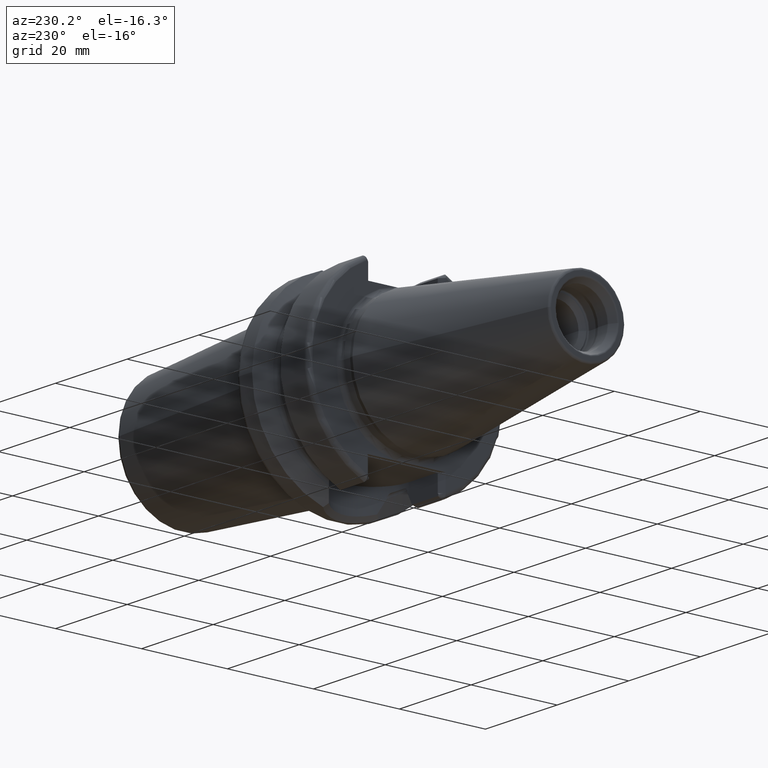
[diagram: clean part render]
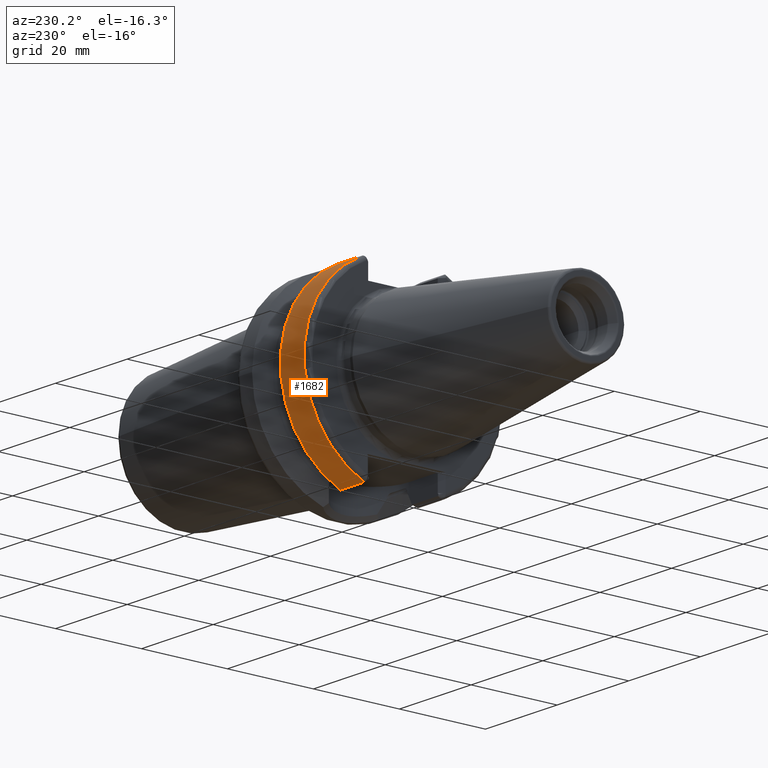
[diagram: same view with one face highlighted and labeled with its STEP entity id]
A machine part, auxiliary view. The second image highlights one B-rep face of the part: STEP entity #1682.
In plain terms, the highlighted cylindrical surface (partial cylindrical patch) has radius 22.99 mm, axis along (1, 0, 0).
Its self-contained STEP definition (entity closure, byte-faithful):
#208=CARTESIAN_POINT('',(3.E0,0.E0,0.E0));
#209=DIRECTION('',(-1.E0,0.E0,0.E0));
#210=DIRECTION('',(0.E0,4.135970895862E-1,9.104600197075E-1));
#211=AXIS2_PLACEMENT_3D('',#208,#209,#210);
#213=DIRECTION('',(-9.999999999953E-1,1.691137855745E-6,2.559578267209E-6));
#214=VECTOR('',#213,6.650924186073E0);
#215=CARTESIAN_POINT('',(9.650924158743E0,9.014912704843E0,-2.114879308434E1));
#216=LINE('',#215,#214);
#217=CARTESIAN_POINT('',(9.650924158743E0,0.E0,0.E0));
#218=DIRECTION('',(1.E0,0.E0,0.E0));
#219=DIRECTION('',(0.E0,3.921232146517E-1,-9.199127048428E-1));
#220=AXIS2_PLACEMENT_3D('',#217,#218,#219);
#222=DIRECTION('',(9.999999999877E-1,2.689360368038E-6,-4.174830095266E-6));
#223=VECTOR('',#222,6.650924175867E0);
#224=CARTESIAN_POINT('',(2.999999982958E0,9.508579202854E0,2.093150361955E1));
#225=LINE('',#224,#223);
#582=CARTESIAN_POINT('',(2.999999972701E0,9.014923952472E0,-2.114877606078E1));
#1308=CARTESIAN_POINT('',(9.650924158743E0,9.014912704843E0,-2.114879308434E1));
#1309=CARTESIAN_POINT('',(9.650924158743E0,9.508597089586E0,2.093147585308E1));
#1310=VERTEX_POINT('',#1308);
#1311=VERTEX_POINT('',#1309);
#1323=CARTESIAN_POINT('',(3.E0,9.508621994147E0,2.093146453960E1));
#1325=VERTEX_POINT('',#1323);
#1340=VERTEX_POINT('',#582);
#1668=CARTESIAN_POINT('',(-5.192E1,0.E0,0.E0));
#1669=DIRECTION('',(1.E0,0.E0,0.E0));
#1670=DIRECTION('',(0.E0,-1.E0,0.E0));
#1671=AXIS2_PLACEMENT_3D('',#1668,#1669,#1670);
#1672=CYLINDRICAL_SURFACE('',#1671,2.299E1);
#1674=ORIENTED_EDGE('',*,*,#1673,.T.);
#1676=ORIENTED_EDGE('',*,*,#1675,.F.);
#1677=ORIENTED_EDGE('',*,*,#1611,.T.);
#1679=ORIENTED_EDGE('',*,*,#1678,.F.);
#1680=EDGE_LOOP('',(#1674,#1676,#1677,#1679));
#1681=FACE_OUTER_BOUND('',#1680,.F.);
#1682=ADVANCED_FACE('',(#1681),#1672,.T.);
#212=CIRCLE('',#211,2.299E1);
#221=CIRCLE('',#220,2.299E1);
#1611=EDGE_CURVE('',#1310,#1311,#221,.T.);
#1673=EDGE_CURVE('',#1325,#1340,#212,.T.);
#1675=EDGE_CURVE('',#1310,#1340,#216,.T.);
#1678=EDGE_CURVE('',#1325,#1311,#225,.T.);